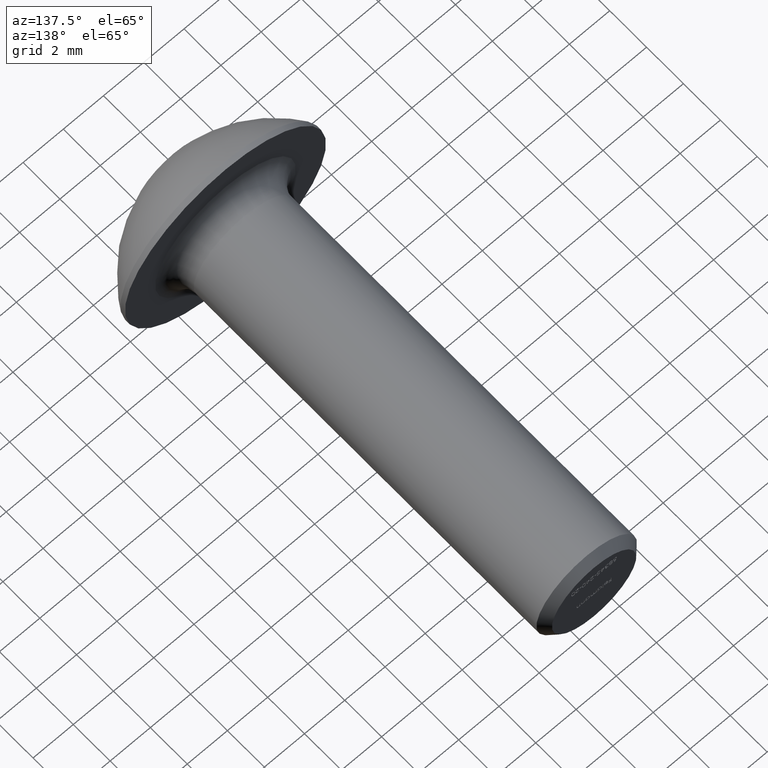
[diagram: clean part render]
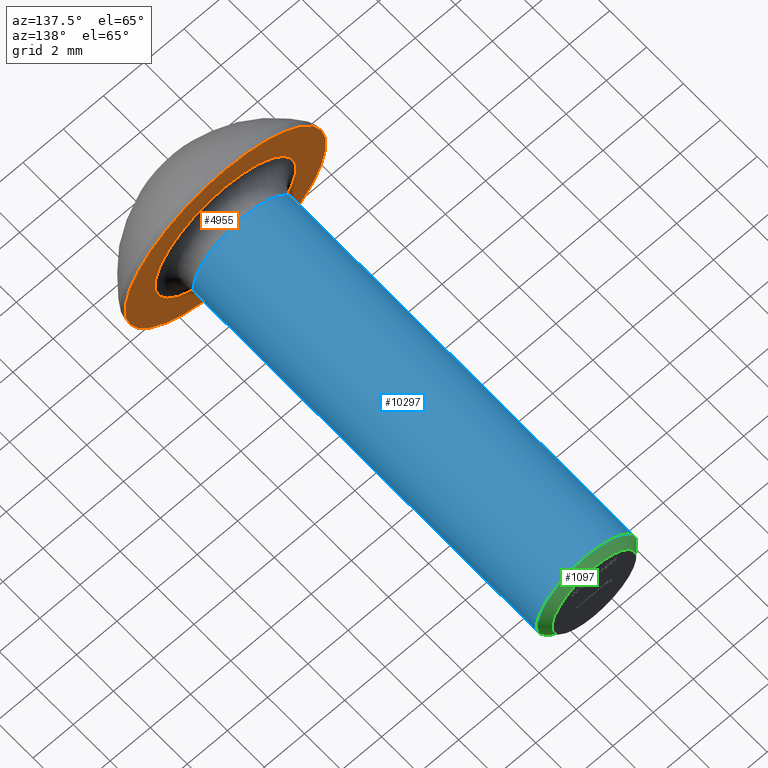
[diagram: same view with three faces highlighted in distinct colors, each labeled with its STEP entity id]
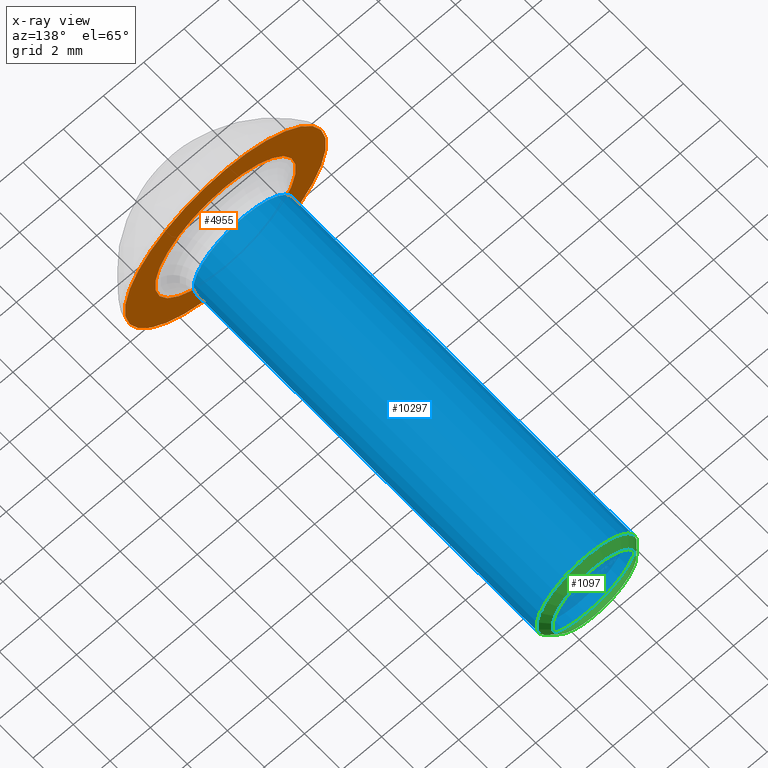
[diagram: x-ray of the same camera — body ghosted, the three highlighted faces saturated]
A machine part, auxiliary view with three faces highlighted in distinct colors.
The next image is the same camera in x-ray (body ghosted, the three faces saturated) — at least one of them is partly hidden behind the body in this view.
Their STEP definitions:

[orange] entity #4955 — the highlighted planar face has unit normal (0, -1, -0).
#373 = CARTESIAN_POINT ( 'NONE',  ( 0.0000000000000000000, 2.799999999999999800, 0.0000000000000000000 ) ) ;
#416 = EDGE_LOOP ( 'NONE', ( #5590 ) ) ;
#1573 = DIRECTION ( 'NONE',  ( 0.0000000000000000000, 0.0000000000000000000, -1.000000000000000000 ) ) ;
#1745 = FACE_OUTER_BOUND ( 'NONE', #1760, .T. ) ;
#1760 = EDGE_LOOP ( 'NONE', ( #3144 ) ) ;
#2413 = DIRECTION ( 'NONE',  ( 0.0000000000000000000, -1.000000000000000000, -0.0000000000000000000 ) ) ;
#2800 = CARTESIAN_POINT ( 'NONE',  ( 0.0000000000000000000, 2.800000000000000300, 0.0000000000000000000 ) ) ;
#3144 = ORIENTED_EDGE ( 'NONE', *, *, #15180, .F. ) ;
#4195 = DIRECTION ( 'NONE',  ( -0.0000000000000000000, -1.000000000000000000, -0.0000000000000000000 ) ) ;
#4501 = EDGE_CURVE ( 'NONE', #9017, #9017, #7941, .T. ) ;
#4814 = AXIS2_PLACEMENT_3D ( 'NONE', #2800, #12660, #1573 ) ;
#4955 = ADVANCED_FACE ( 'NONE', ( #10457, #1745 ), #14755, .F. ) ;
#5009 = AXIS2_PLACEMENT_3D ( 'NONE', #12322, #2413, #8576 ) ;
#5590 = ORIENTED_EDGE ( 'NONE', *, *, #4501, .T. ) ;
#6515 = VERTEX_POINT ( 'NONE', #10946 ) ;
#7941 = CIRCLE ( 'NONE', #4814, 3.499999999999996900 ) ;
#8576 = DIRECTION ( 'NONE',  ( 0.0000000000000000000, 0.0000000000000000000, -1.000000000000000000 ) ) ;
#9017 = VERTEX_POINT ( 'NONE', #14686 ) ;
#10457 = FACE_BOUND ( 'NONE', #416, .T. ) ;
#10946 = CARTESIAN_POINT ( 'NONE',  ( 0.0000000000000000000, 2.799999999999999800, -5.000000000000000900 ) ) ;
#10998 = AXIS2_PLACEMENT_3D ( 'NONE', #373, #4195, #15346 ) ;
#12322 = CARTESIAN_POINT ( 'NONE',  ( 2.499999999999999600, 2.800000000000000300, 0.0000000000000000000 ) ) ;
#12660 = DIRECTION ( 'NONE',  ( -0.0000000000000000000, -1.000000000000000000, -0.0000000000000000000 ) ) ;
#12744 = CIRCLE ( 'NONE', #10998, 5.000000000000000900 ) ;
#14686 = CARTESIAN_POINT ( 'NONE',  ( 0.0000000000000000000, 2.800000000000000300, -3.499999999999996900 ) ) ;
#14755 = PLANE ( 'NONE',  #5009 ) ;
#15180 = EDGE_CURVE ( 'NONE', #6515, #6515, #12744, .T. ) ;
#15346 = DIRECTION ( 'NONE',  ( 0.0000000000000000000, 0.0000000000000000000, -1.000000000000000000 ) ) ;

[blue] entity #10297 — the highlighted cylindrical surface (bore or boss wall) has radius 2.5 mm, axis along (-0, -1, -0).
#1267 = CARTESIAN_POINT ( 'NONE',  ( 0.0000000000000000000, 22.39809999999998900, -2.499999999999994700 ) ) ;
#1492 = AXIS2_PLACEMENT_3D ( 'NONE', #5221, #7769, #12537 ) ;
#1730 = CIRCLE ( 'NONE', #1492, 2.499999999999996900 ) ;
#3509 = EDGE_CURVE ( 'NONE', #12714, #12714, #1730, .T. ) ;
#3533 = CARTESIAN_POINT ( 'NONE',  ( 0.0000000000000000000, 22.39809999999998900, 0.0000000000000000000 ) ) ;
#3693 = FACE_OUTER_BOUND ( 'NONE', #11707, .T. ) ;
#3842 = CYLINDRICAL_SURFACE ( 'NONE', #13660, 2.499999999999996900 ) ;
#4521 = EDGE_CURVE ( 'NONE', #13872, #13872, #10047, .T. ) ;
#4968 = ORIENTED_EDGE ( 'NONE', *, *, #4521, .T. ) ;
#5221 = CARTESIAN_POINT ( 'NONE',  ( 0.0000000000000000000, 3.800000000000000300, 0.0000000000000000000 ) ) ;
#5970 = AXIS2_PLACEMENT_3D ( 'NONE', #3533, #15859, #7166 ) ;
#7166 = DIRECTION ( 'NONE',  ( 0.0000000000000000000, 0.0000000000000000000, -1.000000000000000000 ) ) ;
#7428 = CARTESIAN_POINT ( 'NONE',  ( 0.0000000000000000000, 3.800000000000000300, -2.499999999999996900 ) ) ;
#7769 = DIRECTION ( 'NONE',  ( 0.0000000000000000000, 1.000000000000000000, 0.0000000000000000000 ) ) ;
#8616 = DIRECTION ( 'NONE',  ( 0.0000000000000000000, 0.0000000000000000000, -1.000000000000000000 ) ) ;
#8778 = EDGE_LOOP ( 'NONE', ( #9678 ) ) ;
#9678 = ORIENTED_EDGE ( 'NONE', *, *, #3509, .T. ) ;
#10047 = CIRCLE ( 'NONE', #5970, 2.499999999999994700 ) ;
#10297 = ADVANCED_FACE ( 'NONE', ( #10900, #3693 ), #3842, .T. ) ;
#10900 = FACE_OUTER_BOUND ( 'NONE', #8778, .T. ) ;
#11707 = EDGE_LOOP ( 'NONE', ( #4968 ) ) ;
#12413 = CARTESIAN_POINT ( 'NONE',  ( 0.0000000000000000000, 0.0000000000000000000, 0.0000000000000000000 ) ) ;
#12537 = DIRECTION ( 'NONE',  ( 0.0000000000000000000, 0.0000000000000000000, -1.000000000000000000 ) ) ;
#12714 = VERTEX_POINT ( 'NONE', #7428 ) ;
#13660 = AXIS2_PLACEMENT_3D ( 'NONE', #12413, #14883, #8616 ) ;
#13872 = VERTEX_POINT ( 'NONE', #1267 ) ;
#14883 = DIRECTION ( 'NONE',  ( -0.0000000000000000000, -1.000000000000000000, -0.0000000000000000000 ) ) ;
#15859 = DIRECTION ( 'NONE',  ( -0.0000000000000000000, -1.000000000000000000, -0.0000000000000000000 ) ) ;

[green] entity #1097 — the highlighted conical surface has half-angle 45 deg.
#346 = ORIENTED_EDGE ( 'NONE', *, *, #789, .T. ) ;
#789 = EDGE_CURVE ( 'NONE', #3235, #3235, #4282, .T. ) ;
#1097 = ADVANCED_FACE ( 'NONE', ( #15108, #4681 ), #10674, .T. ) ;
#1267 = CARTESIAN_POINT ( 'NONE',  ( 0.0000000000000000000, 22.39809999999998900, -2.499999999999994700 ) ) ;
#2963 = DIRECTION ( 'NONE',  ( -0.0000000000000000000, -1.000000000000000000, -0.0000000000000000000 ) ) ;
#3235 = VERTEX_POINT ( 'NONE', #16020 ) ;
#3533 = CARTESIAN_POINT ( 'NONE',  ( 0.0000000000000000000, 22.39809999999998900, 0.0000000000000000000 ) ) ;
#3562 = AXIS2_PLACEMENT_3D ( 'NONE', #15136, #5126, #13961 ) ;
#4154 = CARTESIAN_POINT ( 'NONE',  ( 0.0000000000000000000, 22.80000000000000100, 0.0000000000000000000 ) ) ;
#4282 = CIRCLE ( 'NONE', #3562, 2.098099999999989900 ) ;
#4521 = EDGE_CURVE ( 'NONE', #13872, #13872, #10047, .T. ) ;
#4681 = FACE_BOUND ( 'NONE', #10857, .T. ) ;
#5126 = DIRECTION ( 'NONE',  ( -0.0000000000000000000, -1.000000000000000000, -0.0000000000000000000 ) ) ;
#5970 = AXIS2_PLACEMENT_3D ( 'NONE', #3533, #15859, #7166 ) ;
#7166 = DIRECTION ( 'NONE',  ( 0.0000000000000000000, 0.0000000000000000000, -1.000000000000000000 ) ) ;
#7853 = EDGE_LOOP ( 'NONE', ( #8714 ) ) ;
#8533 = AXIS2_PLACEMENT_3D ( 'NONE', #4154, #2963, #14072 ) ;
#8714 = ORIENTED_EDGE ( 'NONE', *, *, #4521, .F. ) ;
#10047 = CIRCLE ( 'NONE', #5970, 2.499999999999994700 ) ;
#10674 = CONICAL_SURFACE ( 'NONE', #8533, 2.098099999999989900, 0.7853981633974412800 ) ;
#10857 = EDGE_LOOP ( 'NONE', ( #346 ) ) ;
#13872 = VERTEX_POINT ( 'NONE', #1267 ) ;
#13961 = DIRECTION ( 'NONE',  ( 0.0000000000000000000, 0.0000000000000000000, -1.000000000000000000 ) ) ;
#14072 = DIRECTION ( 'NONE',  ( 0.0000000000000000000, 0.0000000000000000000, -1.000000000000000000 ) ) ;
#15108 = FACE_OUTER_BOUND ( 'NONE', #7853, .T. ) ;
#15136 = CARTESIAN_POINT ( 'NONE',  ( 0.0000000000000000000, 22.80000000000000100, 0.0000000000000000000 ) ) ;
#15859 = DIRECTION ( 'NONE',  ( -0.0000000000000000000, -1.000000000000000000, -0.0000000000000000000 ) ) ;
#16020 = CARTESIAN_POINT ( 'NONE',  ( 0.0000000000000000000, 22.80000000000000100, -2.098099999999989900 ) ) ;